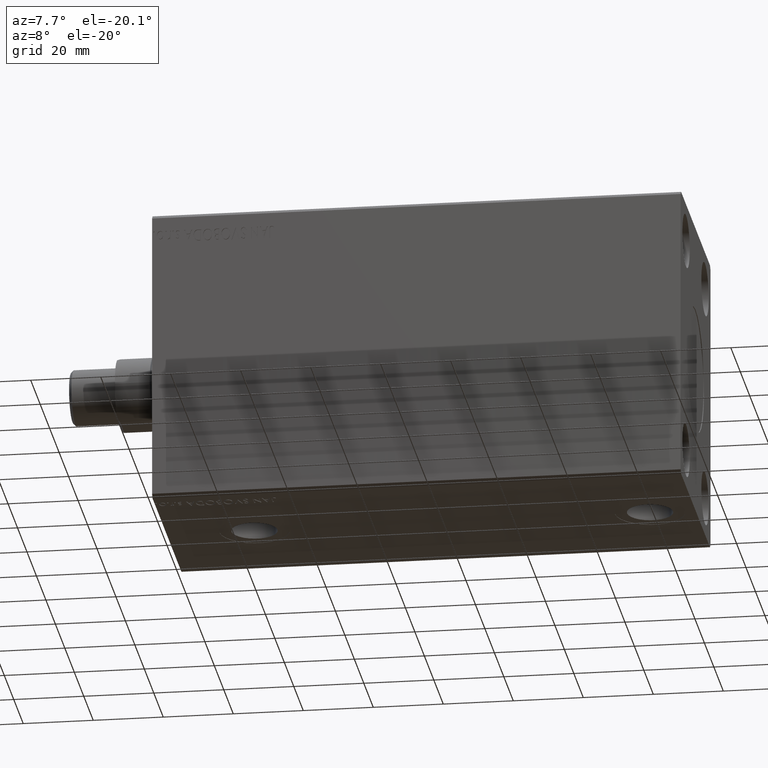
[diagram: clean part render]
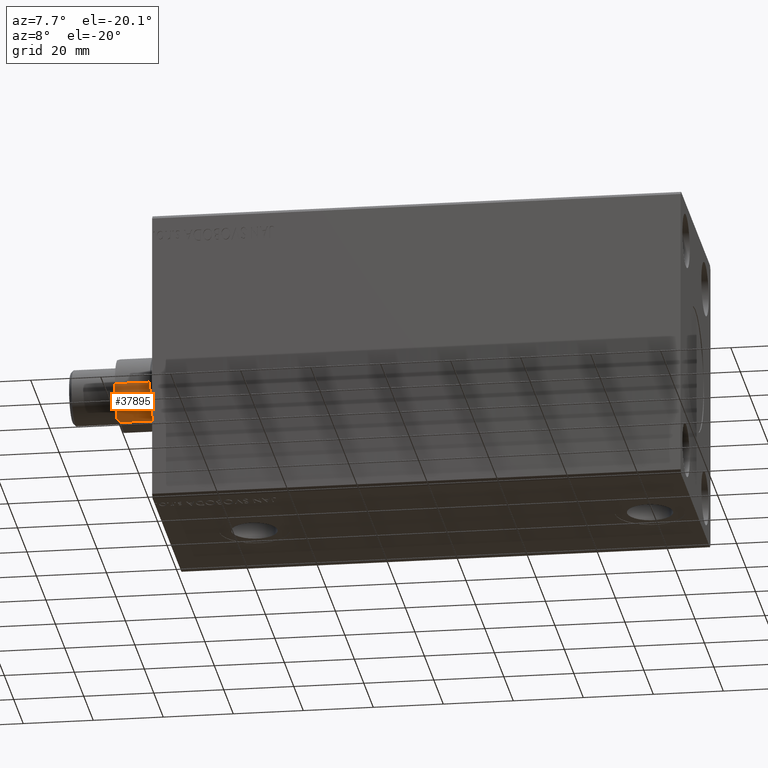
[diagram: same view with one face highlighted and labeled with its STEP entity id]
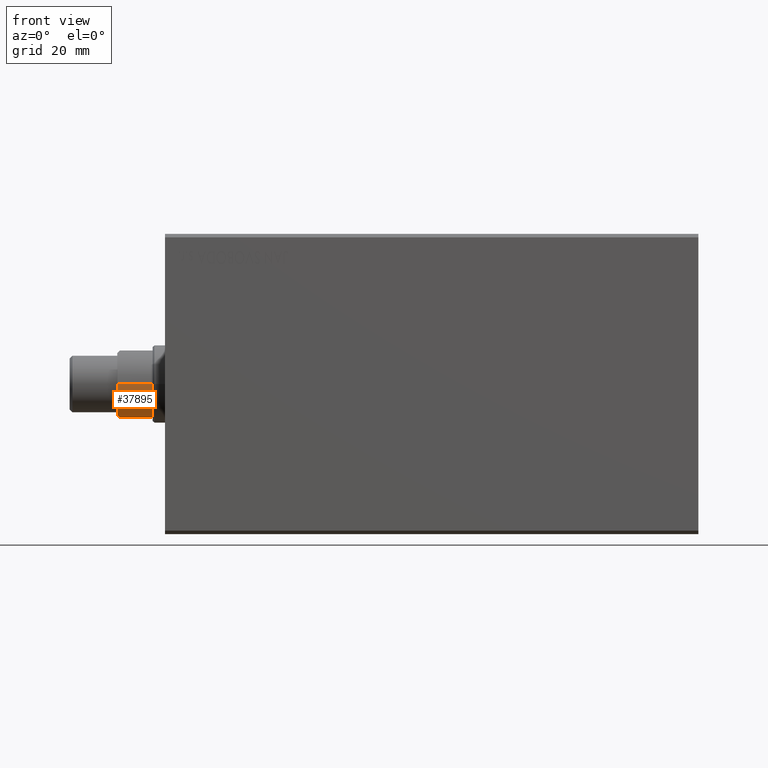
[diagram: same view with one face highlighted and labeled with its STEP entity id]
A machine part, auxiliary view. The second image highlights one B-rep face of the part: STEP entity #37895.
A second angle (front view) of the same face is appended — the face is thin or edge-on in the first view.
In plain terms, the highlighted cylindrical surface (partial cylindrical patch) has radius 10.46 mm, axis along (-1, -0, 0).
Its self-contained STEP definition (entity closure, byte-faithful):
#1148 = VERTEX_POINT ( 'NONE', #4893 ) ;
#1429 = CIRCLE ( 'NONE', #27297, 10.45999999999999908 ) ;
#1457 = AXIS2_PLACEMENT_3D ( 'NONE', #2517, #26602, #5906 ) ;
#2167 = VECTOR ( 'NONE', #28178, 1000.000000000000000 ) ;
#2329 = EDGE_CURVE ( 'NONE', #7090, #33753, #37901, .T. ) ;
#2517 = CARTESIAN_POINT ( 'NONE',  ( 0.000000000000000000, -2.276485067488053234E-14, 128.5000000000000000 ) ) ;
#4893 = CARTESIAN_POINT ( 'NONE',  ( 0.000000000000000000, -10.46000000000002217, 128.5000000000000000 ) ) ;
#5644 = CARTESIAN_POINT ( 'NONE',  ( -9.500000000000000000, -4.377396486497449501, 127.7900000000000205 ) ) ;
#5906 = DIRECTION ( 'NONE',  ( 0.000000000000000000, -1.000000000000000000, 0.000000000000000000 ) ) ;
#7046 = ORIENTED_EDGE ( 'NONE', *, *, #2329, .T. ) ;
#7090 = VERTEX_POINT ( 'NONE', #19599 ) ;
#11123 = CARTESIAN_POINT ( 'NONE',  ( -9.500000000000000000, -4.377396486497447725, 118.4999999999999716 ) ) ;
#12103 = LINE ( 'NONE', #36185, #39551 ) ;
#12396 = VERTEX_POINT ( 'NONE', #11123 ) ;
#12751 = CARTESIAN_POINT ( 'NONE',  ( -9.056889589612575620, -5.256118063110198690, 128.2331104103874679 ) ) ;
#15059 = CIRCLE ( 'NONE', #27276, 10.46000000000000085 ) ;
#19586 = ORIENTED_EDGE ( 'NONE', *, *, #19701, .T. ) ;
#19599 = CARTESIAN_POINT ( 'NONE',  ( -8.790000000000025793, -5.669876541865773945, 128.5000000000000000 ) ) ;
#19701 = EDGE_CURVE ( 'NONE', #12396, #25277, #15059, .T. ) ;
#20458 = EDGE_CURVE ( 'NONE', #25277, #1148, #31314, .T. ) ;
#21297 = CARTESIAN_POINT ( 'NONE',  ( 0.000000000000000000, -2.099326696477309698E-14, 118.5000000000000000 ) ) ;
#21416 = CARTESIAN_POINT ( 'NONE',  ( 0.000000000000000000, -10.46000000000002395, 128.5000000000000000 ) ) ;
#24215 = CARTESIAN_POINT ( 'NONE',  ( 0.000000000000000000, -2.276485067488053234E-14, 128.5000000000000000 ) ) ;
#24777 = CARTESIAN_POINT ( 'NONE',  ( 1.314046015485110459E-15, -10.46000000000002217, 118.5000000000000000 ) ) ;
#24829 = ORIENTED_EDGE ( 'NONE', *, *, #20458, .T. ) ;
#25277 = VERTEX_POINT ( 'NONE', #24777 ) ;
#26477 = CARTESIAN_POINT ( 'NONE',  ( -9.500000000000000000, -4.377396486497449501, 127.7900000000000205 ) ) ;
#26602 = DIRECTION ( 'NONE',  ( -0.000000000000000000, -1.771583710107434432E-16, 1.000000000000000000 ) ) ;
#27276 = AXIS2_PLACEMENT_3D ( 'NONE', #21297, #28274, #42003 ) ;
#27297 = AXIS2_PLACEMENT_3D ( 'NONE', #24215, #44228, #40872 ) ;
#28178 = DIRECTION ( 'NONE',  ( -0.000000000000000000, -1.771583710107434432E-16, 1.000000000000000000 ) ) ;
#28274 = DIRECTION ( 'NONE',  ( -0.000000000000000000, -1.771583710107434432E-16, 1.000000000000000000 ) ) ;
#29094 = FACE_OUTER_BOUND ( 'NONE', #41721, .T. ) ;
#31314 = LINE ( 'NONE', #21416, #2167 ) ;
#31994 = ORIENTED_EDGE ( 'NONE', *, *, #37493, .F. ) ;
#32901 = CYLINDRICAL_SURFACE ( 'NONE', #1457, 10.46000000000000085 ) ;
#33753 = VERTEX_POINT ( 'NONE', #5644 ) ;
#36185 = CARTESIAN_POINT ( 'NONE',  ( -9.500000000000000000, -4.377396486497449501, 128.5000000000000000 ) ) ;
#36994 = ORIENTED_EDGE ( 'NONE', *, *, #38130, .T. ) ;
#37493 = EDGE_CURVE ( 'NONE', #7090, #1148, #1429, .T. ) ;
#37895 = ADVANCED_FACE ( 'NONE', ( #29094 ), #32901, .T. ) ;
#37901 =( BOUNDED_CURVE ( )  B_SPLINE_CURVE ( 3, ( #43573, #12751, #40431, #26477 ),
 .UNSPECIFIED., .F., .F. ) 
 B_SPLINE_CURVE_WITH_KNOTS ( ( 4, 4 ),
 ( 2.568714171481424113, 2.709811500076702462 ),
 .UNSPECIFIED. ) 
 CURVE ( )  GEOMETRIC_REPRESENTATION_ITEM ( )  RATIONAL_B_SPLINE_CURVE ( ( 1.000000000000000000, 0.9983416499762386431, 0.9983416499762386431, 1.000000000000000000 ) ) 
 REPRESENTATION_ITEM ( '' )  );
#38130 = EDGE_CURVE ( 'NONE', #33753, #12396, #12103, .T. ) ;
#39551 = VECTOR ( 'NONE', #42930, 1000.000000000000000 ) ;
#40431 = CARTESIAN_POINT ( 'NONE',  ( -9.293949384395546076, -4.824575729748637798, 127.9960506156044886 ) ) ;
#40872 = DIRECTION ( 'NONE',  ( 0.000000000000000000, -1.000000000000000000, 0.000000000000000000 ) ) ;
#41721 = EDGE_LOOP ( 'NONE', ( #19586, #24829, #31994, #7046, #36994 ) ) ;
#42003 = DIRECTION ( 'NONE',  ( 0.000000000000000000, -1.000000000000000000, 0.000000000000000000 ) ) ;
#42930 = DIRECTION ( 'NONE',  ( 0.000000000000000000, 1.771583710107434432E-16, -1.000000000000000000 ) ) ;
#43573 = CARTESIAN_POINT ( 'NONE',  ( -8.790000000000025793, -5.669876541865773945, 128.5000000000000000 ) ) ;
#44228 = DIRECTION ( 'NONE',  ( -0.000000000000000000, -1.771583710107434432E-16, 1.000000000000000000 ) ) ;